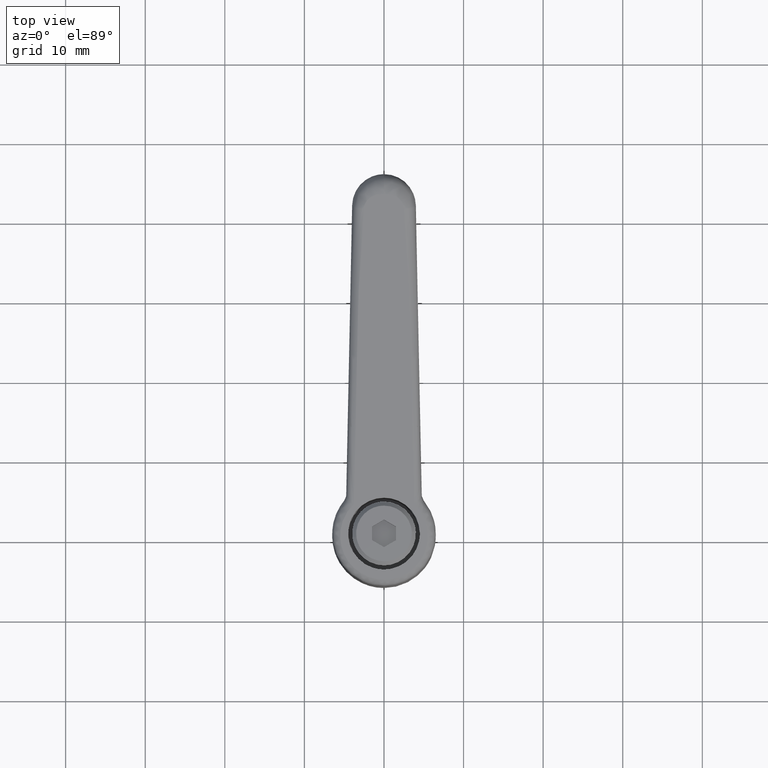
[diagram: clean part render]
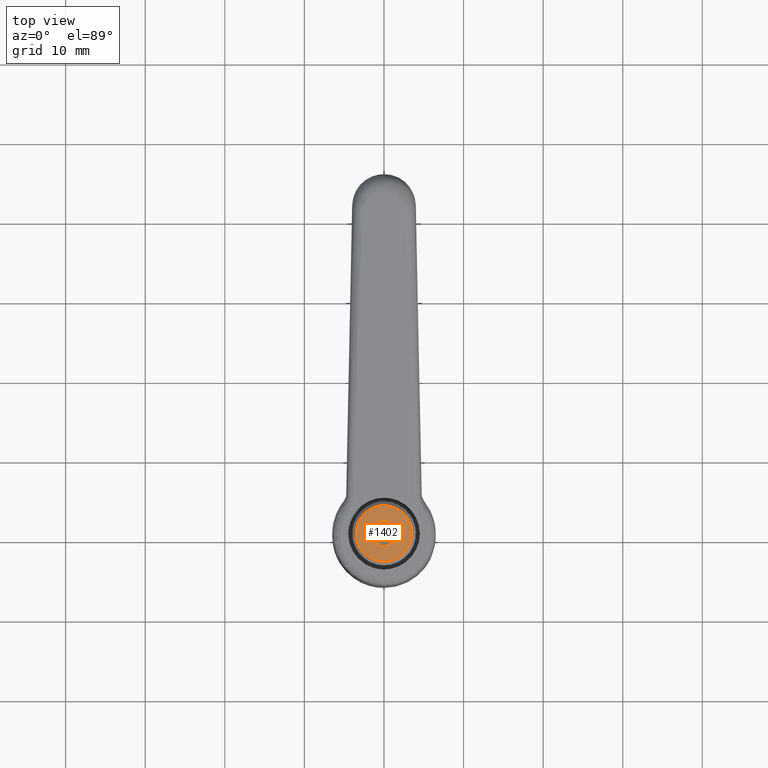
[diagram: same view with one face highlighted and labeled with its STEP entity id]
A machine part, top view. The second image highlights one B-rep face of the part: STEP entity #1402.
In plain terms, the highlighted face is a freeform B-spline surface patch.
Its self-contained STEP definition (entity closure, byte-faithful):
#1067=CARTESIAN_POINT('',(-0.413119821343470,3.475533342273055,24.499999999994390));
#1068=VERTEX_POINT('',#1067);
#1074=CARTESIAN_POINT('',(3.499999999999901,0.0,24.500000000000000));
#1075=VERTEX_POINT('',#1074);
#1076=CARTESIAN_POINT('',(-0.413119821343470,3.475533342273055,24.499999999994390));
#1077=CARTESIAN_POINT('',(-0.207284418826311,3.499999999999900,24.500000000000007));
#1078=CARTESIAN_POINT('',(0.0,3.499999999999901,24.500000000000000));
#1079=CARTESIAN_POINT('',(3.499999999999901,3.499999999999901,24.499999999999993));
#1080=CARTESIAN_POINT('',(3.499999999999901,0.0,24.500000000000000));
#1088=(BOUNDED_CURVE()B_SPLINE_CURVE(2,(#1076,#1077,#1078,#1079,#1080),.UNSPECIFIED.,.F.,.U.)B_SPLINE_CURVE_WITH_KNOTS((3,2,3),(0.229562473511349,0.250000000000000,0.500000000000000),.UNSPECIFIED.)CURVE()GEOMETRIC_REPRESENTATION_ITEM()RATIONAL_B_SPLINE_CURVE((0.956026754179467,0.976055948328615,1.0,0.707106781186547,1.0))REPRESENTATION_ITEM(''));
#1089=EDGE_CURVE('',#1068,#1075,#1088,.T.);
#1091=CARTESIAN_POINT('',(0.213669888796001,-3.493471794506617,24.499999999943991));
#1092=VERTEX_POINT('',#1091);
#1093=CARTESIAN_POINT('',(3.499999999999901,0.0,24.500000000000000));
#1094=CARTESIAN_POINT('',(3.499999999999900,-3.292471233375597,24.499999999999993));
#1095=CARTESIAN_POINT('',(0.213669888796001,-3.493471794506617,24.499999999943991));
#1103=(BOUNDED_CURVE()B_SPLINE_CURVE(2,(#1093,#1094,#1095),.UNSPECIFIED.,.F.,.U.)B_SPLINE_CURVE_WITH_KNOTS((3,3),(0.500000000000000,0.739332962200423),.UNSPECIFIED.)CURVE()GEOMETRIC_REPRESENTATION_ITEM()RATIONAL_B_SPLINE_CURVE((1.0,0.719603993331839,0.976072041584161))REPRESENTATION_ITEM(''));
#1104=EDGE_CURVE('',#1075,#1092,#1103,.T.);
#1137=CARTESIAN_POINT('',(-3.499999999999901,0.0,24.500000000000000));
#1138=VERTEX_POINT('',#1137);
#1139=CARTESIAN_POINT('',(0.213669888796001,-3.493471794506617,24.499999999943991));
#1140=CARTESIAN_POINT('',(0.106934671966826,-3.499999999999901,24.500000000000004));
#1141=CARTESIAN_POINT('',(0.0,-3.499999999999901,24.500000000000000));
#1142=CARTESIAN_POINT('',(-3.499999999999901,-3.499999999999901,24.499999999999993));
#1143=CARTESIAN_POINT('',(-3.499999999999901,0.0,24.500000000000000));
#1151=(BOUNDED_CURVE()B_SPLINE_CURVE(2,(#1139,#1140,#1141,#1142,#1143),.UNSPECIFIED.,.F.,.U.)B_SPLINE_CURVE_WITH_KNOTS((3,2,3),(0.739332962200422,0.750000000000000,1.0),.UNSPECIFIED.)CURVE()GEOMETRIC_REPRESENTATION_ITEM()RATIONAL_B_SPLINE_CURVE((0.976072041584159,0.987502787854707,1.0,0.707106781186547,1.0))REPRESENTATION_ITEM(''));
#1152=EDGE_CURVE('',#1092,#1138,#1151,.T.);
#1154=CARTESIAN_POINT('',(-3.499999999999901,0.0,24.500000000000000));
#1155=CARTESIAN_POINT('',(-3.499999999999900,3.108610840750136,24.500000000000000));
#1156=CARTESIAN_POINT('',(-0.413119821343470,3.475533342273055,24.499999999994383));
#1164=(BOUNDED_CURVE()B_SPLINE_CURVE(2,(#1154,#1155,#1156),.UNSPECIFIED.,.F.,.U.)B_SPLINE_CURVE_WITH_KNOTS((3,3),(0.0,0.229562473511349),.UNSPECIFIED.)CURVE()GEOMETRIC_REPRESENTATION_ITEM()RATIONAL_B_SPLINE_CURVE((1.0,0.731050832857932,0.956026754179467))REPRESENTATION_ITEM(''));
#1165=EDGE_CURVE('',#1138,#1068,#1164,.T.);
#1226=CARTESIAN_POINT('',(-1.732055999999900,0.0,24.500000000000000));
#1227=VERTEX_POINT('',#1226);
#1228=CARTESIAN_POINT('',(-0.866020000000000,1.500000000000000,24.500000000000000));
#1229=VERTEX_POINT('',#1228);
#1230=CARTESIAN_POINT('',(-1.732055999999900,0.0,24.500000000000000));
#1231=CARTESIAN_POINT('',(-0.866020000000000,1.500000000000000,24.500000000000000));
#1232=QUASI_UNIFORM_CURVE('',1,(#1230,#1231),.UNSPECIFIED.,.F.,.U.);
#1233=EDGE_CURVE('',#1227,#1229,#1232,.T.);
#1254=CARTESIAN_POINT('',(-0.866027999999900,-1.499999999999914,24.500000000000000));
#1255=VERTEX_POINT('',#1254);
#1256=CARTESIAN_POINT('',(-0.866027999999900,-1.499999999999914,24.500000000000000));
#1257=CARTESIAN_POINT('',(-1.732055999999900,0.0,24.500000000000000));
#1258=QUASI_UNIFORM_CURVE('',1,(#1256,#1257),.UNSPECIFIED.,.F.,.U.);
#1259=EDGE_CURVE('',#1255,#1227,#1258,.T.);
#1276=CARTESIAN_POINT('',(0.866028000000000,-1.499999999999914,24.500000000000000));
#1277=VERTEX_POINT('',#1276);
#1278=CARTESIAN_POINT('',(0.866028000000000,-1.499999999999914,24.500000000000000));
#1279=CARTESIAN_POINT('',(-0.866027999999900,-1.499999999999914,24.500000000000000));
#1280=QUASI_UNIFORM_CURVE('',1,(#1278,#1279),.UNSPECIFIED.,.F.,.U.);
#1281=EDGE_CURVE('',#1277,#1255,#1280,.T.);
#1298=CARTESIAN_POINT('',(1.732048000000000,0.0,24.500000000000000));
#1299=VERTEX_POINT('',#1298);
#1300=CARTESIAN_POINT('',(1.732048000000000,0.0,24.500000000000000));
#1301=CARTESIAN_POINT('',(0.866028000000000,-1.499999999999914,24.500000000000000));
#1302=QUASI_UNIFORM_CURVE('',1,(#1300,#1301),.UNSPECIFIED.,.F.,.U.);
#1303=EDGE_CURVE('',#1299,#1277,#1302,.T.);
#1320=CARTESIAN_POINT('',(0.866020000000000,1.500000000000000,24.500000000000000));
#1321=VERTEX_POINT('',#1320);
#1322=CARTESIAN_POINT('',(0.866020000000000,1.500000000000000,24.500000000000000));
#1323=CARTESIAN_POINT('',(1.732048000000000,0.0,24.500000000000000));
#1324=QUASI_UNIFORM_CURVE('',1,(#1322,#1323),.UNSPECIFIED.,.F.,.U.);
#1325=EDGE_CURVE('',#1321,#1299,#1324,.T.);
#1342=CARTESIAN_POINT('',(-0.866020000000000,1.500000000000000,24.500000000000000));
#1343=CARTESIAN_POINT('',(0.866020000000000,1.500000000000000,24.500000000000000));
#1344=QUASI_UNIFORM_CURVE('',1,(#1342,#1343),.UNSPECIFIED.,.F.,.U.);
#1345=EDGE_CURVE('',#1229,#1321,#1344,.T.);
#1383=CARTESIAN_POINT('',(-3.849649986432532,-3.849564799543365,24.500000000000000));
#1384=CARTESIAN_POINT('',(3.849650174187163,-3.849564799543365,24.500000000000000));
#1385=CARTESIAN_POINT('',(-3.849649986432532,3.849586328741055,24.500000000000000));
#1386=CARTESIAN_POINT('',(3.849650174187163,3.849586328741055,24.500000000000000));
#1387=B_SPLINE_SURFACE_WITH_KNOTS('',1,1,((#1383,#1385),(#1384,#1386)),.UNSPECIFIED.,.F.,.F.,.U.,(2,2),(2,2),(0.0,7.699300160619695),(0.0,7.699151128284419),.UNSPECIFIED.);
#1388=ORIENTED_EDGE('',*,*,#1152,.F.);
#1389=ORIENTED_EDGE('',*,*,#1104,.F.);
#1390=ORIENTED_EDGE('',*,*,#1089,.F.);
#1391=ORIENTED_EDGE('',*,*,#1165,.F.);
#1392=EDGE_LOOP('',(#1388,#1389,#1390,#1391));
#1393=FACE_OUTER_BOUND('',#1392,.T.);
#1394=ORIENTED_EDGE('',*,*,#1233,.T.);
#1395=ORIENTED_EDGE('',*,*,#1345,.T.);
#1396=ORIENTED_EDGE('',*,*,#1325,.T.);
#1397=ORIENTED_EDGE('',*,*,#1303,.T.);
#1398=ORIENTED_EDGE('',*,*,#1281,.T.);
#1399=ORIENTED_EDGE('',*,*,#1259,.T.);
#1400=EDGE_LOOP('',(#1394,#1395,#1396,#1397,#1398,#1399));
#1401=FACE_BOUND('',#1400,.T.);
#1402=ADVANCED_FACE('',(#1393,#1401),#1387,.T.);